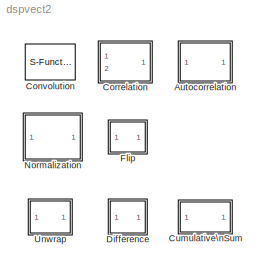
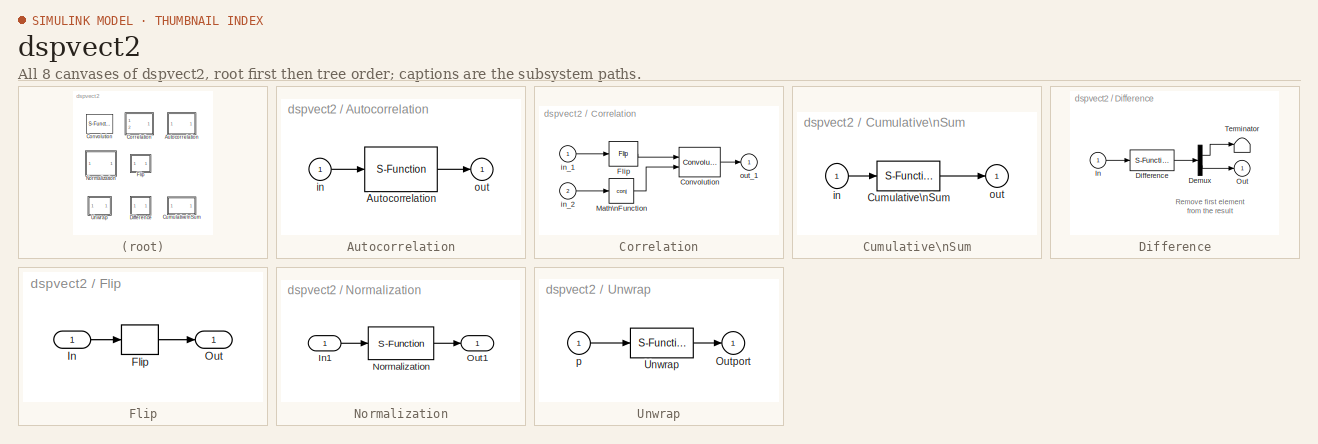
[diagram: thumbnail index - all 8 canvases of the model, root first then tree order]
MODEL dspvect2
KIND library
BLOCK [SubSystem] Autocorrelation
  MaskCallbackString = |
  MaskDescription = Computes the autocorrelation function for non-negative lags in the range [0, length(u)-1].
  MaskDisplay = disp('ACF')
  MaskEnableString = on,on
  MaskHelp = web(dspbhelp);
  MaskIconFrame = on
  MaskIconOpaque = on
  MaskIconRotate = none
  MaskIconUnits = autoscale
  MaskPromptString = Maximum positive lag (-1 for all positive lags)|Scaling:
  MaskStyleString = edit,popup(None|Biased|Unbiased|Unity at zero-lag)
  MaskTunableValueString = off,on
  MaskType = Autocorrelation
  MaskValueString = -1|None
  MaskVariables = maxlag=@1;bias=@2;
  MaskVisibilityString = on,on
  Ports = [1, 1, 0, 0, 0]
  ShowPortLabels = on
BLOCK [S-Function] Autocorrelation/Autocorrelation
  FunctionName = sdspacf
  Parameters = maxlag,bias
  PortCounts = []
  Ports = [1, 1, 0, 0, 0]
  SFunctionModules = ''
BLOCK [Inport] Autocorrelation/in
  DataType = auto
  Interpolate = on
  Port = 1
  PortWidth = -1
  SampleTime = -1
  SignalType = auto
BLOCK [Outport] Autocorrelation/out
  InitialOutput = 0
  OutputWhenDisabled = held
  Port = 1
BLOCK [S-Function] Convolution
  FunctionName = sdspconv
  MaskDescription = Convolve two vectors.
  MaskDisplay = disp('Conv')
  MaskHelp = web(dspbhelp);
  MaskIconFrame = on
  MaskIconOpaque = on
  MaskIconRotate = none
  MaskIconUnits = autoscale
  MaskType = Convolution
  PortCounts = []
  Ports = [2, 1, 0, 0, 0]
  SFunctionModules = ''
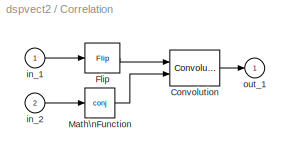
BLOCK [SubSystem] Correlation
  MaskDescription = Correlation between two vectors.
  MaskDisplay = disp('Corr')
  MaskHelp = web(dspbhelp);
  MaskIconFrame = on
  MaskIconOpaque = on
  MaskIconRotate = none
  MaskIconUnits = autoscale
  MaskType = Correlation
  Ports = [2, 1, 0, 0, 0]
  ShowPortLabels = on
BLOCK [Reference] Correlation/Convolution  REF=dspvect2/Convolution
  Ports = [2, 1, 0, 0, 0]
  SourceBlock = dspvect2/Convolution
  SourceType = Convolution
BLOCK [Reference] Correlation/Flip  REF=dspvect2/Flip
  Ports = [1, 1, 0, 0, 0]
  SourceBlock = dspvect2/Flip
  SourceType = Flip
BLOCK [Math] Correlation/Math\nFunction
  Operator = conj
  OutputSignalType = auto
  Ports = [1, 1, 0, 0, 0]
BLOCK [Inport] Correlation/in_1
  DataType = auto
  Interpolate = on
  Port = 1
  PortWidth = -1
  SampleTime = -1
  SignalType = auto
BLOCK [Inport] Correlation/in_2
  DataType = auto
  Interpolate = on
  Port = 2
  PortWidth = -1
  SampleTime = -1
  SignalType = auto
BLOCK [Outport] Correlation/out_1
  InitialOutput = 0
  OutputWhenDisabled = held
  Port = 1
BLOCK [SubSystem] Cumulative\nSum
  MaskDescription = Cumulative sum of input elements.
  MaskDisplay = disp('cumsum')
  MaskHelp = web(dspbhelp);
  MaskIconFrame = on
  MaskIconOpaque = on
  MaskIconRotate = none
  MaskIconUnits = autoscale
  MaskType = Cumulative Sum
  Ports = [1, 1, 0, 0, 0]
  ShowPortLabels = on
BLOCK [S-Function] Cumulative\nSum/Cumulative\nSum
  FunctionName = scumsum
  PortCounts = []
  Ports = [1, 1, 0, 0, 0]
  SFunctionModules = ''
BLOCK [Inport] Cumulative\nSum/in
  DataType = auto
  Interpolate = on
  Port = 1
  PortWidth = -1
  SampleTime = -1
  SignalType = auto
BLOCK [Outport] Cumulative\nSum/out
  InitialOutput = 0
  OutputWhenDisabled = held
  Port = 1
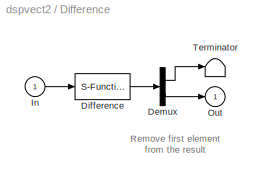
BLOCK [SubSystem] Difference
  MaskDescription = Difference between adjacent vector input elements.
  MaskDisplay = disp('diff')
  MaskHelp = web(dspbhelp);
  MaskIconFrame = on
  MaskIconOpaque = on
  MaskIconRotate = none
  MaskIconUnits = autoscale
  MaskType = Difference
  Ports = [1, 1, 0, 0, 0]
  ShowPortLabels = on
BLOCK [Demux] Difference/Demux
  Outputs = [1 -1]
  Ports = [1, 2, 0, 0, 0]
BLOCK [S-Function] Difference/Difference
  FunctionName = sdspdiff
  PortCounts = []
  Ports = [1, 1, 0, 0, 0]
  SFunctionModules = ''
BLOCK [Inport] Difference/In
  DataType = auto
  Interpolate = on
  Port = 1
  PortWidth = -1
  SampleTime = -1
  SignalType = auto
BLOCK [Outport] Difference/Out
  InitialOutput = 0
  OutputWhenDisabled = held
  Port = 1
BLOCK [Terminator] Difference/Terminator
BLOCK [SubSystem] Flip
  MaskDescription = Reverse order of vector elements.
  MaskDisplay = plot(0,0,100,100,[47 40 40 47],[20 20 90 90],[53 60 60 53],[90 90 20 20],[75 76 81 80 73],[34 24 40 60 90],[83 76],[29 24],[19 30 19 19 26],[86 84 72 50 20],[29 30],[71 84])
  MaskHelp = web(dspbhelp);
  MaskIconFrame = on
  MaskIconOpaque = on
  MaskIconRotate = none
  MaskIconUnits = autoscale
  MaskType = Flip
  Ports = [1, 1, 0, 0, 0]
  ShowPortLabels = on
BLOCK [S-Function] Flip/Flip
  FunctionName = sflip
  PortCounts = []
  Ports = [1, 1, 0, 0, 0]
  SFunctionModules = ''
BLOCK [Inport] Flip/In
  DataType = auto
  Interpolate = on
  Port = 1
  PortWidth = -1
  SampleTime = -1
  SignalType = auto
BLOCK [Outport] Flip/Out
  InitialOutput = 0
  OutputWhenDisabled = held
  Port = 1
BLOCK [SubSystem] Normalization
  MaskCallbackString = |
  MaskDescription = Normalize each input element by the vector 2-norm, sqrt(u'u)+b, or by the squared 2-norm, u'u+b, where b is a bias used to protect against divide-by-zero.
  MaskDisplay = plot(x,y)\ntext(44,80,'u'); text(44,25,'u'); text(72,39,sqr_txt)
  MaskEnableString = on,on
  MaskHelp = web(dspbhelp);\n
  MaskIconFrame = on
  MaskIconOpaque = on
  MaskIconRotate = none
  MaskIconUnits = autoscale
  MaskInitialization = x = [0 NaN 100 NaN 20 80 NaN 30 30 NaN 36 36 NaN 58 58 NaN 64 64];\ny = [0 NaN 100 NaN 60 60 NaN 9 43 NaN 9 43 NaN 9 43 NaN 9 43];\nif NormType==1, sqr_txt = ' '; else sqr_txt = '2'; end\n
  MaskPromptString = Norm:|Normalization bias:
  MaskSelfModifiable = on
  MaskStyleString = popup(2-norm|Squared 2-norm),edit
  MaskTunableValueString = on,on
  MaskType = Normalization
  MaskValueString = Squared 2-norm|1e-10
  MaskVariables = NormType=@1;Bias=@2;
  MaskVisibilityString = on,on
  Ports = [1, 1, 0, 0, 0]
  ShowPortLabels = on
BLOCK [Inport] Normalization/In1
  DataType = auto
  Interpolate = on
  Port = 1
  PortWidth = -1
  SampleTime = -1
  SignalType = auto
BLOCK [S-Function] Normalization/Normalization
  FunctionName = sdsp2norm
  Parameters = Bias,NormType
  PortCounts = []
  Ports = [1, 1, 0, 0, 0]
  SFunctionModules = ''
BLOCK [Outport] Normalization/Out1
  InitialOutput = 0
  OutputWhenDisabled = held
  Port = 1
BLOCK [SubSystem] Unwrap
  MaskDescription = Remove phase discontinuities greater than tolerance threshold.\n
  MaskDisplay = plot(0,0,100,100,[16 16],[92 8],[8 92],[16 16],[16 48 48 80],[64 44 76 56],[64 64 58 64 70],[60 40 46 40 46],[69 82],[30 22],[],[],[52 65],[41 33])
  MaskEnableString = on
  MaskHelp = web(dspbhelp);
  MaskIconFrame = on
  MaskIconOpaque = on
  MaskIconRotate = none
  MaskIconUnits = autoscale
  MaskPromptString = Tolerance (radians):
  MaskStyleString = edit
  MaskTunableValueString = on
  MaskType = Unwrap
  MaskValueString = pi
  MaskVariables = tol=@1;
  MaskVisibilityString = on
  Ports = [1, 1, 0, 0, 0]
  ShowPortLabels = on
BLOCK [Outport] Unwrap/Outport
  InitialOutput = 0
  OutputWhenDisabled = held
  Port = 1
BLOCK [S-Function] Unwrap/Unwrap
  FunctionName = sdspunwrap
  Parameters = tol
  PortCounts = []
  Ports = [1, 1, 0, 0, 0]
  SFunctionModules = ''
BLOCK [Inport] Unwrap/p
  DataType = auto
  Interpolate = on
  Port = 1
  PortWidth = -1
  SampleTime = -1
  SignalType = auto
LINE Autocorrelation/Autocorrelation:1 -> Autocorrelation/out:1
LINE Autocorrelation/in:1 -> Autocorrelation/Autocorrelation:1
LINE Correlation/Convolution:1 -> Correlation/out_1:1
LINE Correlation/Flip:1 -> Correlation/Convolution:1
LINE Correlation/Math\nFunction:1 -> Correlation/Convolution:2
LINE Correlation/in_1:1 -> Correlation/Flip:1
LINE Correlation/in_2:1 -> Correlation/Math\nFunction:1
LINE Cumulative\nSum/Cumulative\nSum:1 -> Cumulative\nSum/out:1
LINE Cumulative\nSum/in:1 -> Cumulative\nSum/Cumulative\nSum:1
LINE Difference/Demux:1 -> Difference/Terminator:1
LINE Difference/Demux:2 -> Difference/Out:1
LINE Difference/Difference:1 -> Difference/Demux:1
LINE Difference/In:1 -> Difference/Difference:1
LINE Flip/Flip:1 -> Flip/Out:1
LINE Flip/In:1 -> Flip/Flip:1
LINE Normalization/In1:1 -> Normalization/Normalization:1
LINE Normalization/Normalization:1 -> Normalization/Out1:1
LINE Unwrap/Unwrap:1 -> Unwrap/Outport:1
LINE Unwrap/p:1 -> Unwrap/Unwrap:1
